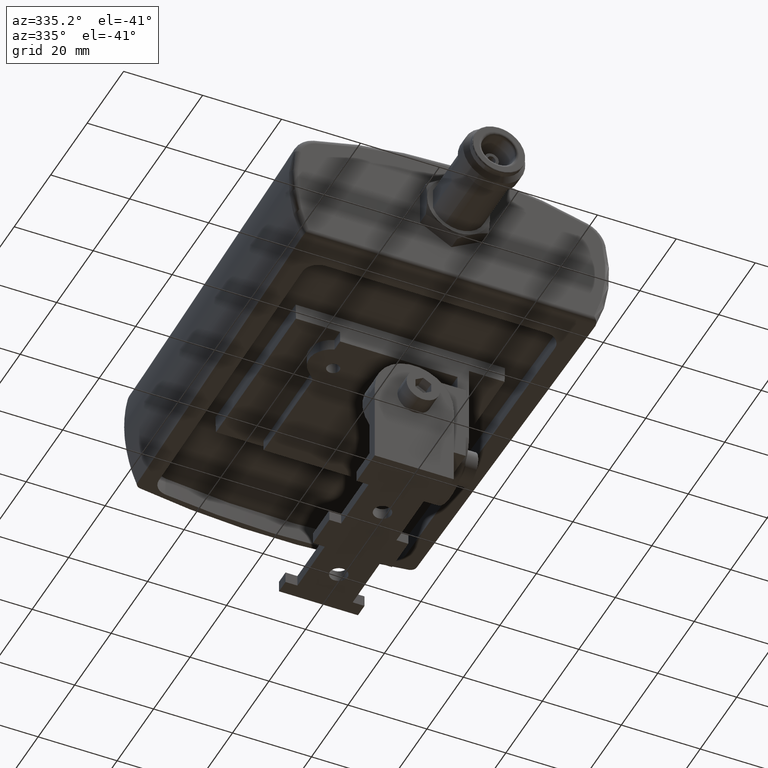
[diagram: clean part render]
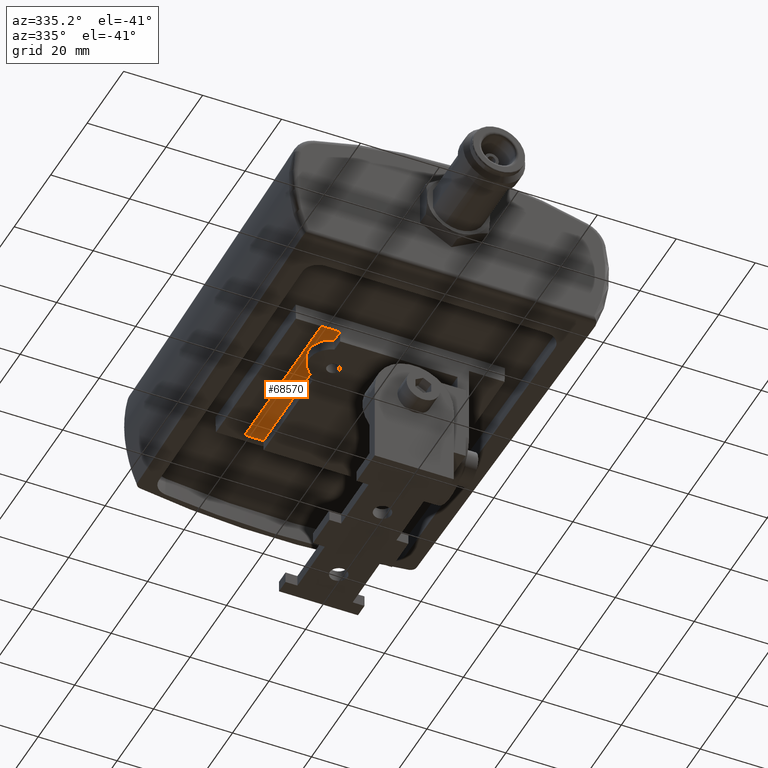
[diagram: same view with one face highlighted and labeled with its STEP entity id]
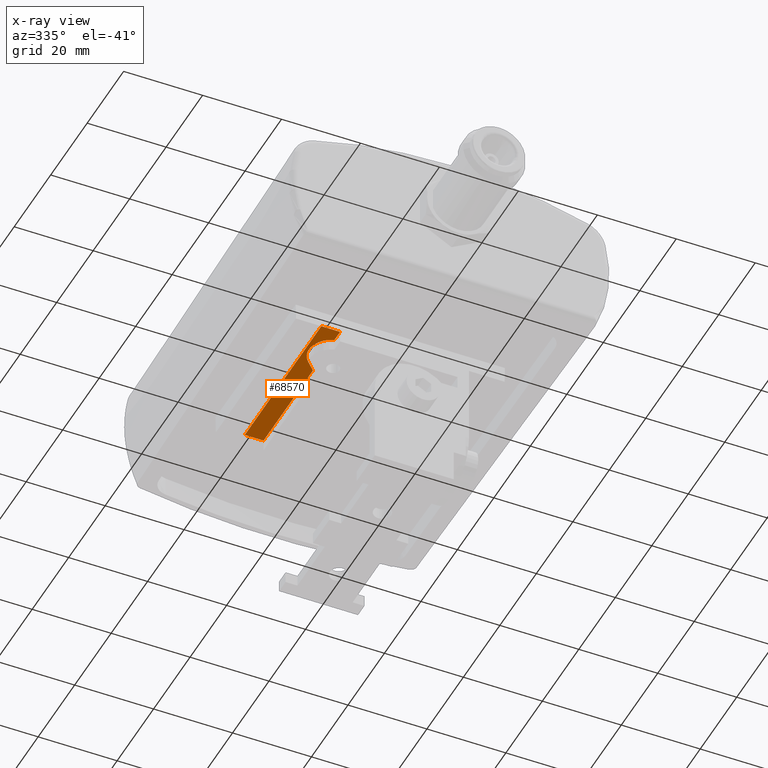
[diagram: x-ray of the same camera — body ghosted, the highlighted face saturated]
A machine part, auxiliary view. The second image highlights one B-rep face of the part: STEP entity #68570.
The next image is the same camera in x-ray: the body ghosted, the highlighted face saturated — about 0% of this face is hidden behind the body in this view.
In plain terms, the highlighted planar face has unit normal (0, 0, -1).
Its self-contained STEP definition (entity closure, byte-faithful):
#61440=CARTESIAN_POINT('',(-23.1142171163988,-20.4999390746155,
-21.3642171168626));
#61450=DIRECTION('',(-1.6757420911E-11,1.,-3.15864629346254E-17));
#61460=DIRECTION('',(1.,1.6757420911E-11,2.25696476288901E-12));
#61470=AXIS2_PLACEMENT_3D('',#61440,#61450,#61460);
#61480=PLANE('',#61470);
#62600=CARTESIAN_POINT('',(-19.8999999994549,-20.4999390745616,
-41.3999999999566));
#62610=DIRECTION('',(1.,1.6757420911E-11,2.25696476288901E-12));
#62620=VECTOR('',#62610,1.);
#62630=LINE('',#62600,#62620);
#63630=CARTESIAN_POINT('',(15.3500000004012,-20.4999390739709,
0.600000000014597));
#63640=VERTEX_POINT('',#63630);
#63670=CARTESIAN_POINT('',(20.1000000004503,-20.4999390738913,
0.60000000013364));
#63680=DIRECTION('',(-1.,-1.6757420911E-11,-2.25696476288901E-12));
#63690=VECTOR('',#63680,1.);
#63700=LINE('',#63670,#63690);
#63710=CARTESIAN_POINT('',(20.1000000004503,-20.4999390738913,
0.600000000014597));
#63720=VERTEX_POINT('',#63710);
#63730=EDGE_CURVE('',#63720,#63640,#63700,.T.);
#64050=CARTESIAN_POINT('',(15.3500000004012,-20.4999390740013,
-2.50893049606563));
#64060=VERTEX_POINT('',#64050);
#64090=CARTESIAN_POINT('',(15.3500000004012,-20.4999390739709,0.));
#64100=DIRECTION('',(0.,3.15864629346254E-17,1.));
#64110=VECTOR('',#64100,1.);
#64120=LINE('',#64090,#64110);
#64130=EDGE_CURVE('',#64060,#63640,#64120,.T.);
#64590=CARTESIAN_POINT('',(17.6008928348083,-20.4999390740013,
-12.0308351492083));
#64600=VERTEX_POINT('',#64590);
#64630=CARTESIAN_POINT('',(13.5350288430013,-20.4999390740013,
-7.96497115737));
#64640=DIRECTION('',(0.,1.,0.));
#64650=DIRECTION('',(1.,0.,0.));
#64660=AXIS2_PLACEMENT_3D('',#64630,#64640,#64650);
#64670=CIRCLE('',#64660,5.74999999999999);
#64680=EDGE_CURVE('',#64060,#64600,#64670,.T.);
#64910=CARTESIAN_POINT('',(15.3500000004998,-20.4999390739709,
-14.2817279835111));
#64920=VERTEX_POINT('',#64910);
#64950=CARTESIAN_POINT('',(29.6317279839503,-20.4999390737316,0.));
#64960=DIRECTION('',(0.707106781185048,1.1849216052795E-11,
0.707106781188047));
#64970=VECTOR('',#64960,1.);
#64980=LINE('',#64950,#64970);
#64990=EDGE_CURVE('',#64920,#64600,#64980,.T.);
#65600=CARTESIAN_POINT('',(15.3500000004998,-20.4999390739709,
-41.3999999998983));
#65610=VERTEX_POINT('',#65600);
#65640=CARTESIAN_POINT('',(15.3500000004998,-20.4999390739709,0.));
#65650=DIRECTION('',(0.,3.15864629346254E-17,1.));
#65660=VECTOR('',#65650,1.);
#65670=LINE('',#65640,#65660);
#65680=EDGE_CURVE('',#65610,#64920,#65670,.T.);
#65920=CARTESIAN_POINT('',(20.1000000005451,-20.4999390738913,
-41.3999999998983));
#65930=VERTEX_POINT('',#65920);
#65960=EDGE_CURVE('',#65610,#65930,#62630,.T.);
#67330=CARTESIAN_POINT('',(20.1000000005451,-20.4999390738913,
-41.3999999998664));
#67340=DIRECTION('',(-2.25696476288901E-12,3.15864251137168E-17,1.));
#67350=VECTOR('',#67340,1.);
#67360=LINE('',#67330,#67350);
#67370=EDGE_CURVE('',#65930,#63720,#67360,.T.);
#68480=ORIENTED_EDGE('',*,*,#65680,.T.);
#68490=ORIENTED_EDGE('',*,*,#65960,.F.);
#68500=ORIENTED_EDGE('',*,*,#67370,.F.);
#68510=ORIENTED_EDGE('',*,*,#63730,.F.);
#68520=ORIENTED_EDGE('',*,*,#64130,.T.);
#68530=ORIENTED_EDGE('',*,*,#64680,.F.);
#68540=ORIENTED_EDGE('',*,*,#64990,.T.);
#68550=EDGE_LOOP('',(#68540,#68530,#68520,#68510,#68500,#68490,#68480));
#68560=FACE_OUTER_BOUND('',#68550,.T.);
#68570=ADVANCED_FACE('',(#68560),#61480,.T.);